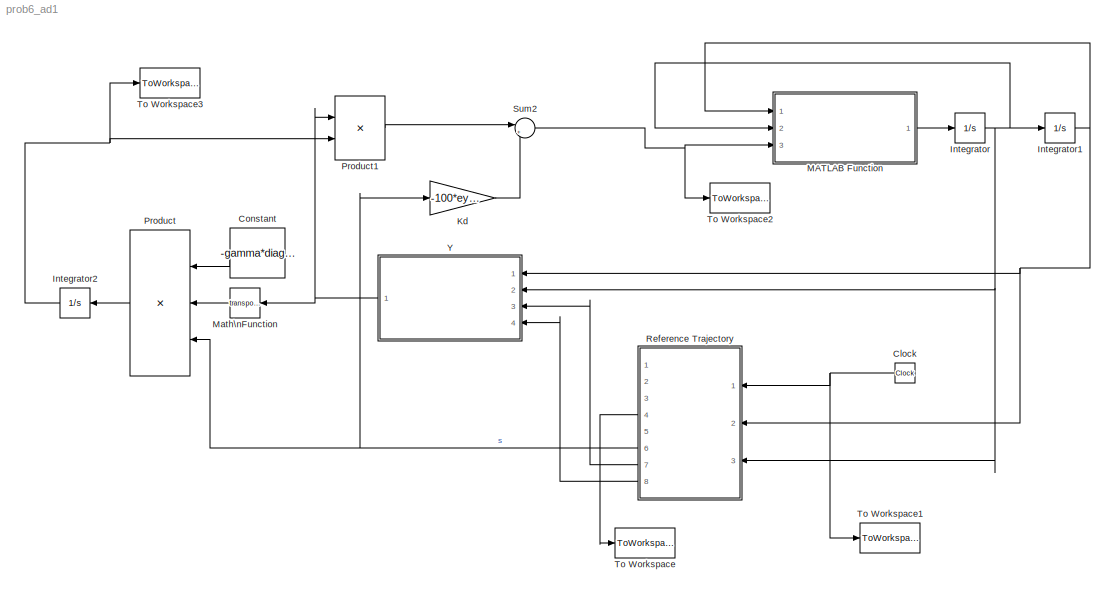
MODEL prob6_ad1
KIND model
BLOCK [Clock] Clock
  SID = 19
BLOCK [Constant] Constant
  SID = 46
  Value = -gamma*diag([0.03 0.05 0.1 0.3]')
BLOCK [Integrator] Integrator
  InitialCondition = [0;0];
  Ports = [1, 1]
  SID = 2
BLOCK [Integrator] Integrator1
  InitialCondition = [0;0];
  Ports = [1, 1]
  SID = 3
BLOCK [Integrator] Integrator2
  InitialCondition = [0;0;0;0];
  Ports = [1, 1]
  SID = 49
BLOCK [Gain] Kd
  Gain = -100*eye(2,2)
  Multiplication = Matrix(K*u)
  OutDataTypeStr = Inherit: Inherit via internal rule
  ParamDataTypeStr = Inherit: Inherit via internal rule
  SID = 51
  SaturateOnIntegerOverflow = off
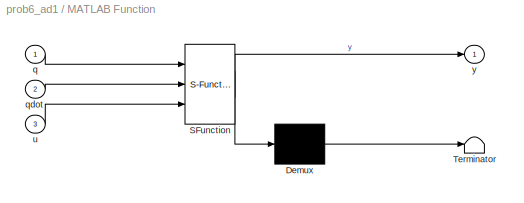
BLOCK [SubSystem] MATLAB Function
  ErrorFcn = Stateflow.Translate.translate
  FunctionWithSeparateData = off
  MaskHideContents = off
  MinAlgLoopOccurrences = off
  Opaque = off
  PermitHierarchicalResolution = ExplicitOnly
  Ports = [3, 1]
  PropExecContextOutsideSubsystem = off
  RTWSystemCode = Auto
  RequestExecContextInheritance = off
  SFBlockType = MATLAB Function
  SID = 1
  TreatAsAtomicUnit = on
BLOCK [Demux] MATLAB Function/ Demux 
  Outputs = 1
  Ports = [1, 1]
  SID = 1::29
BLOCK [S-Function] MATLAB Function/ SFunction 
  EnableBusSupport = on
  FunctionName = sf_sfun
  PortCounts = [3 2]
  Ports = [3, 2]
  SID = 1::28
  Tag = Stateflow S-Function prob6_ad1 2
BLOCK [Terminator] MATLAB Function/ Terminator 
  SID = 1::31
BLOCK [Inport] MATLAB Function/q
  IconDisplay = Port number
  SID = 1::1
BLOCK [Inport] MATLAB Function/qdot
  IconDisplay = Port number
  Port = 2
  SID = 1::18
BLOCK [Inport] MATLAB Function/u
  IconDisplay = Port number
  Port = 3
  SID = 1::19
BLOCK [Outport] MATLAB Function/y
  IconDisplay = Port number
  SID = 1::5
BLOCK [Math] Math\nFunction
  Operator = transpose
  Ports = [1, 1]
  SID = 48
BLOCK [Product] Product
  InputSameDT = off
  Inputs = 3
  Multiplication = Matrix(*)
  OutDataTypeStr = Inherit: Inherit via internal rule
  Ports = [3, 1]
  SID = 47
  SaturateOnIntegerOverflow = off
BLOCK [Product] Product1
  InputSameDT = off
  Multiplication = Matrix(*)
  OutDataTypeStr = Inherit: Inherit via internal rule
  Ports = [2, 1]
  SID = 50
  SaturateOnIntegerOverflow = off
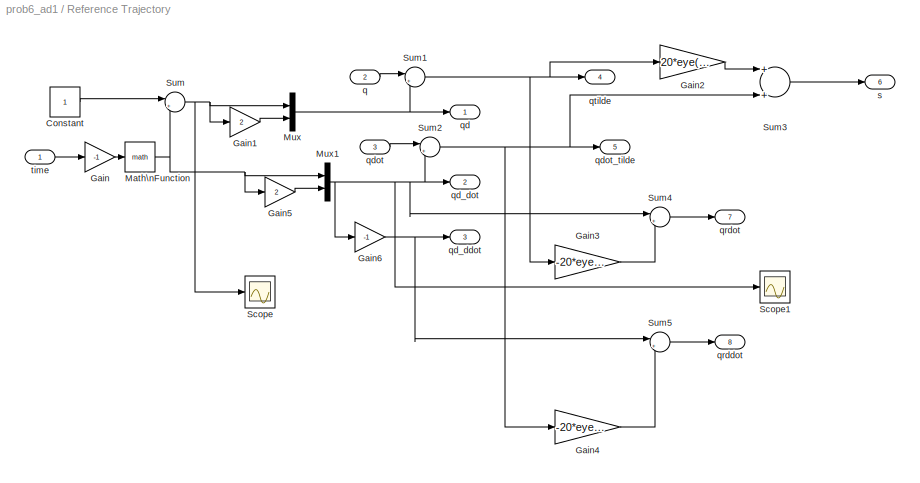
BLOCK [SubSystem] Reference Trajectory
  FunctionWithSeparateData = off
  MaskHideContents = off
  MinAlgLoopOccurrences = off
  Opaque = off
  Ports = [3, 8]
  PropExecContextOutsideSubsystem = off
  RTWSystemCode = Auto
  RequestExecContextInheritance = off
  SID = 14
BLOCK [Constant] Reference Trajectory/Constant
  SID = 21
BLOCK [Gain] Reference Trajectory/Gain
  Gain = -1
  OutDataTypeStr = Inherit: Inherit via internal rule
  ParamDataTypeStr = Inherit: Inherit via internal rule
  SID = 25
  SaturateOnIntegerOverflow = off
BLOCK [Gain] Reference Trajectory/Gain1
  Gain = 2
  OutDataTypeStr = Inherit: Inherit via internal rule
  ParamDataTypeStr = Inherit: Inherit via internal rule
  SID = 27
  SaturateOnIntegerOverflow = off
BLOCK [Gain] Reference Trajectory/Gain2
  Gain = 20*eye(2,2)
  Multiplication = Matrix(K*u)
  OutDataTypeStr = Inherit: Inherit via internal rule
  ParamDataTypeStr = Inherit: Inherit via internal rule
  SID = 38
  SaturateOnIntegerOverflow = off
BLOCK [Gain] Reference Trajectory/Gain3
  Gain = -20*eye(2,2)
  Multiplication = Matrix(K*u)
  OutDataTypeStr = Inherit: Inherit via internal rule
  ParamDataTypeStr = Inherit: Inherit via internal rule
  SID = 41
  SaturateOnIntegerOverflow = off
BLOCK [Gain] Reference Trajectory/Gain4
  Gain = -20*eye(2,2)
  Multiplication = Matrix(K*u)
  OutDataTypeStr = Inherit: Inherit via internal rule
  ParamDataTypeStr = Inherit: Inherit via internal rule
  SID = 44
  SaturateOnIntegerOverflow = off
BLOCK [Gain] Reference Trajectory/Gain5
  Gain = 2
  OutDataTypeStr = Inherit: Inherit via internal rule
  ParamDataTypeStr = Inherit: Inherit via internal rule
  SID = 57
  SaturateOnIntegerOverflow = off
BLOCK [Gain] Reference Trajectory/Gain6
  Gain = -1
  OutDataTypeStr = Inherit: Inherit via internal rule
  ParamDataTypeStr = Inherit: Inherit via internal rule
  SID = 60
  SaturateOnIntegerOverflow = off
BLOCK [Math] Reference Trajectory/Math\nFunction
  Ports = [1, 1]
  SID = 22
BLOCK [Mux] Reference Trajectory/Mux
  DisplayOption = bar
  Inputs = 2
  Ports = [2, 1]
  SID = 26
BLOCK [Mux] Reference Trajectory/Mux1
  DisplayOption = bar
  Inputs = 2
  Ports = [2, 1]
  SID = 58
BLOCK [Scope] Reference Trajectory/Scope
  DataFormat = StructureWithTime
  Floating = off
  NumInputPorts = 1
  Ports = [1]
  SID = 54
  SampleTime = 0
  SaveName = ScopeData1
  ShowLegends = off
  ZoomMode = yonly
BLOCK [Scope] Reference Trajectory/Scope1
  DataFormat = StructureWithTime
  Floating = off
  NumInputPorts = 1
  Ports = [1]
  SID = 56
  SampleTime = 0
  SaveName = ScopeData2
  ShowLegends = off
  ZoomMode = yonly
BLOCK [Sum] Reference Trajectory/Sum
  IconShape = round
  InputSameDT = off
  Inputs = |+-
  OutDataTypeStr = Inherit: Inherit via internal rule
  Ports = [2, 1]
  SID = 23
  SaturateOnIntegerOverflow = off
BLOCK [Sum] Reference Trajectory/Sum1
  IconShape = round
  InputSameDT = off
  Inputs = |+-
  OutDataTypeStr = Inherit: Inherit via internal rule
  Ports = [2, 1]
  SID = 35
  SaturateOnIntegerOverflow = off
BLOCK [Sum] Reference Trajectory/Sum2
  IconShape = round
  InputSameDT = off
  Inputs = |+-
  OutDataTypeStr = Inherit: Inherit via internal rule
  Ports = [2, 1]
  SID = 36
  SaturateOnIntegerOverflow = off
BLOCK [Sum] Reference Trajectory/Sum3
  InputSameDT = off
  OutDataTypeStr = Inherit: Inherit via internal rule
  Ports = [2, 1]
  SID = 37
  SaturateOnIntegerOverflow = off
BLOCK [Sum] Reference Trajectory/Sum4
  IconShape = round
  InputSameDT = off
  Inputs = |++
  OutDataTypeStr = Inherit: Inherit via internal rule
  Ports = [2, 1]
  SID = 42
  SaturateOnIntegerOverflow = off
BLOCK [Sum] Reference Trajectory/Sum5
  IconShape = round
  InputSameDT = off
  Inputs = |++
  OutDataTypeStr = Inherit: Inherit via internal rule
  Ports = [2, 1]
  SID = 43
  SaturateOnIntegerOverflow = off
BLOCK [Inport] Reference Trajectory/q
  IconDisplay = Port number
  Port = 2
  SID = 30
BLOCK [Outport] Reference Trajectory/qd
  IconDisplay = Port number
  SID = 16
BLOCK [Outport] Reference Trajectory/qd_ddot
  IconDisplay = Port number
  Port = 3
  SID = 18
BLOCK [Outport] Reference Trajectory/qd_dot
  IconDisplay = Port number
  Port = 2
  SID = 17
BLOCK [Inport] Reference Trajectory/qdot
  IconDisplay = Port number
  Port = 3
  SID = 31
BLOCK [Outport] Reference Trajectory/qdot_tilde
  IconDisplay = Port number
  Port = 5
  SID = 33
BLOCK [Outport] Reference Trajectory/qrddot
  IconDisplay = Port number
  Port = 8
  SID = 40
BLOCK [Outport] Reference Trajectory/qrdot
  IconDisplay = Port number
  Port = 7
  SID = 39
BLOCK [Outport] Reference Trajectory/qtilde
  IconDisplay = Port number
  Port = 4
  SID = 32
BLOCK [Outport] Reference Trajectory/s
  IconDisplay = Port number
  Port = 6
  SID = 34
BLOCK [Inport] Reference Trajectory/time
  IconDisplay = Port number
  SID = 20
BLOCK [Sum] Sum2
  IconShape = round
  InputSameDT = off
  Inputs = |++
  OutDataTypeStr = Inherit: Inherit via internal rule
  Ports = [2, 1]
  SID = 52
  SaturateOnIntegerOverflow = off
BLOCK [ToWorkspace] To Workspace
  MaxDataPoints = inf
  Ports = [1]
  SID = 62
  SampleTime = -1
  VariableName = qtilde
BLOCK [ToWorkspace] To Workspace1
  MaxDataPoints = inf
  Ports = [1]
  SID = 63
  SampleTime = -1
  VariableName = time
BLOCK [ToWorkspace] To Workspace2
  MaxDataPoints = inf
  Ports = [1]
  SID = 64
  SampleTime = -1
  VariableName = u
BLOCK [ToWorkspace] To Workspace3
  MaxDataPoints = inf
  Ports = [1]
  SID = 66
  SampleTime = -1
  VariableName = ahat
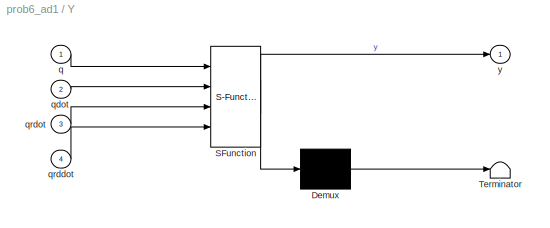
BLOCK [SubSystem] Y
  ErrorFcn = Stateflow.Translate.translate
  FunctionWithSeparateData = off
  MaskHideContents = off
  MinAlgLoopOccurrences = off
  Opaque = off
  PermitHierarchicalResolution = ExplicitOnly
  Ports = [4, 1]
  PropExecContextOutsideSubsystem = off
  RTWSystemCode = Auto
  RequestExecContextInheritance = off
  SFBlockType = MATLAB Function
  SID = 13
  TreatAsAtomicUnit = on
BLOCK [Demux] Y/ Demux 
  Outputs = 1
  Ports = [1, 1]
  SID = 13::31
BLOCK [S-Function] Y/ SFunction 
  EnableBusSupport = on
  FunctionName = sf_sfun
  PortCounts = [4 2]
  Ports = [4, 2]
  SID = 13::30
  Tag = Stateflow S-Function prob6_ad1 1
BLOCK [Terminator] Y/ Terminator 
  SID = 13::33
BLOCK [Inport] Y/q
  IconDisplay = Port number
  SID = 13::1
BLOCK [Inport] Y/qdot
  IconDisplay = Port number
  Port = 2
  SID = 13::18
BLOCK [Inport] Y/qrddot
  IconDisplay = Port number
  Port = 4
  SID = 13::21
BLOCK [Inport] Y/qrdot
  IconDisplay = Port number
  Port = 3
  SID = 13::20
BLOCK [Outport] Y/y
  IconDisplay = Port number
  SID = 13::5
NET Clock:1 -> Reference Trajectory:1, To Workspace1:1
LINE Constant:1 -> Product:1
NET Integrator1:1 -> MATLAB Function:1, Reference Trajectory:2, Y:1
NET Integrator2:1 -> Product1:2, To Workspace3:1
NET Integrator:1 -> Integrator1:1, MATLAB Function:2, Reference Trajectory:3, Y:2
LINE Kd:1 -> Sum2:2
LINE MATLAB Function/ Demux :1 -> MATLAB Function/ Terminator :1
LINE MATLAB Function/ SFunction :1 -> MATLAB Function/ Demux :1
LINE MATLAB Function/ SFunction :2 -> MATLAB Function/y:1
LINE MATLAB Function/q:1 -> MATLAB Function/ SFunction :1
LINE MATLAB Function/qdot:1 -> MATLAB Function/ SFunction :2
LINE MATLAB Function/u:1 -> MATLAB Function/ SFunction :3
LINE MATLAB Function:1 -> Integrator:1
LINE Math\nFunction:1 -> Product:2
LINE Product1:1 -> Sum2:1
LINE Product:1 -> Integrator2:1
LINE Reference Trajectory/Constant:1 -> Reference Trajectory/Sum:1
LINE Reference Trajectory/Gain1:1 -> Reference Trajectory/Mux:2
LINE Reference Trajectory/Gain2:1 -> Reference Trajectory/Sum3:1
LINE Reference Trajectory/Gain3:1 -> Reference Trajectory/Sum4:2
LINE Reference Trajectory/Gain4:1 -> Reference Trajectory/Sum5:2
LINE Reference Trajectory/Gain5:1 -> Reference Trajectory/Mux1:2
NET Reference Trajectory/Gain6:1 -> Reference Trajectory/Sum5:1, Reference Trajectory/qd_ddot:1
LINE Reference Trajectory/Gain:1 -> Reference Trajectory/Math\nFunction:1
NET Reference Trajectory/Math\nFunction:1 -> Reference Trajectory/Gain5:1, Reference Trajectory/Mux1:1, Reference Trajectory/Sum:2
NET Reference Trajectory/Mux1:1 -> Reference Trajectory/Gain6:1, Reference Trajectory/Scope1:1, Reference Trajectory/Sum2:2, Reference Trajectory/Sum4:1, Reference Trajectory/qd_dot:1
NET Reference Trajectory/Mux:1 -> Reference Trajectory/Sum1:2, Reference Trajectory/qd:1
NET Reference Trajectory/Sum1:1 -> Reference Trajectory/Gain2:1, Reference Trajectory/Gain3:1, Reference Trajectory/qtilde:1
NET Reference Trajectory/Sum2:1 -> Reference Trajectory/Gain4:1, Reference Trajectory/Sum3:2, Reference Trajectory/qdot_tilde:1
LINE Reference Trajectory/Sum3:1 -> Reference Trajectory/s:1
LINE Reference Trajectory/Sum4:1 -> Reference Trajectory/qrdot:1
LINE Reference Trajectory/Sum5:1 -> Reference Trajectory/qrddot:1
NET Reference Trajectory/Sum:1 -> Reference Trajectory/Gain1:1, Reference Trajectory/Mux:1, Reference Trajectory/Scope:1
LINE Reference Trajectory/q:1 -> Reference Trajectory/Sum1:1
LINE Reference Trajectory/qdot:1 -> Reference Trajectory/Sum2:1
LINE Reference Trajectory/time:1 -> Reference Trajectory/Gain:1
LINE Reference Trajectory:4 -> To Workspace:1
NET Reference Trajectory:6 -> Kd:1, Product:3
LINE Reference Trajectory:7 -> Y:3
LINE Reference Trajectory:8 -> Y:4
NET Sum2:1 -> MATLAB Function:3, To Workspace2:1
LINE Y/ Demux :1 -> Y/ Terminator :1
LINE Y/ SFunction :1 -> Y/ Demux :1
LINE Y/ SFunction :2 -> Y/y:1
LINE Y/q:1 -> Y/ SFunction :1
LINE Y/qdot:1 -> Y/ SFunction :2
LINE Y/qrddot:1 -> Y/ SFunction :4
LINE Y/qrdot:1 -> Y/ SFunction :3
NET Y:1 -> Math\nFunction:1, Product1:1
note: NET lines group one-source signal fan-out (src -> all destinations, sorted); 1:1 wires keep LINE
CHART Y states=1 transitions=1
  STATE_LABEL 'eML_blk_kernel()'
CHART MATLAB Function states=1 transitions=1
  STATE_LABEL 'eML_blk_kernel()'
